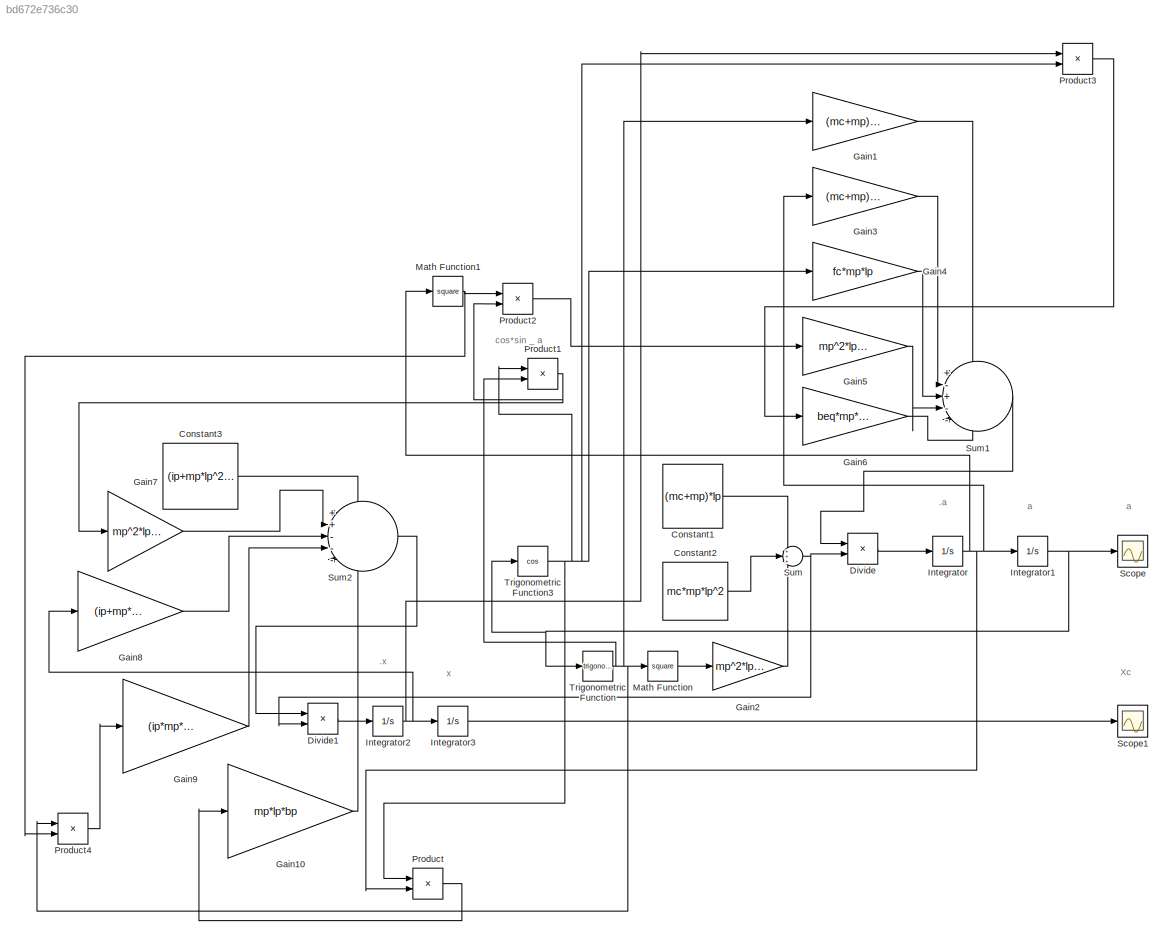
MODEL slx_bd672e736c30
KIND model
CONFIG AbsTol = auto
CONFIG EnableMultiTasking = off
CONFIG FixedStep = auto
CONFIG MaxStep = auto
CONFIG MinStep = auto
CONFIG RelTol = 1e-3
CONFIG SampleTimeConstraint = Unconstrained
CONFIG SolverName = VariableStepAuto
CONFIG StartTime = 0.0
CONFIG StopTime = 10
BLOCK [Constant] Constant1
  Value = (mc+mp)*lp
BLOCK [Constant] Constant2
  Value = mc*mp*lp^2
BLOCK [Constant] Constant3
  Value = (ip+mp*lp^2)*fc
BLOCK [Product] Divide
  Inputs = */
BLOCK [Product] Divide1
  Inputs = */
BLOCK [Gain] Gain1
  Gain = (mc+mp)*mp*g*lp
BLOCK [Gain] Gain10
  Gain = mp*lp*bp
BLOCK [Gain] Gain2
  Gain = mp^2*lp^2
BLOCK [Gain] Gain3
  Gain = (mc+mp)*bp
BLOCK [Gain] Gain4
  Gain = fc*mp*lp
BLOCK [Gain] Gain5
  Gain = mp^2*lp^2
BLOCK [Gain] Gain6
  Gain = beq*mp*lp
BLOCK [Gain] Gain7
  Gain = mp^2*lp^2*g
BLOCK [Gain] Gain8
  Gain = (ip+mp*lp^2)*beq
BLOCK [Gain] Gain9
  Gain = (ip*mp*lp-mp^2*lp^3)
BLOCK [Integrator] Integrator
BLOCK [Integrator] Integrator1
  InitialCondition = 1
BLOCK [Integrator] Integrator2
BLOCK [Integrator] Integrator3
BLOCK [Math] Math Function
  Operator = square
BLOCK [Math] Math Function1
  Operator = square
BLOCK [Product] Product
BLOCK [Product] Product1
BLOCK [Product] Product2
BLOCK [Product] Product3
BLOCK [Product] Product4
BLOCK [Scope] Scope
  ActiveDisplayYMaximum = 5.7897875407586348
  ActiveDisplayYMinimum = 0.46780138436015184
  Floating = off
  GraphicalSettings = {"Style":{"BackgroundColor":[0.12941176470588237,0.12941176470588237,0.12941176470588237],"AxesColor":[0.07058823529411765,0.07058823529411765,0.07058823529411765],"LabelsColor":[0.8509803921568627,0.8509803921568627,0.8509803921568627],"PreserveColors":false,"Visible":[true],"LineStyle":["-"],"LineWidth":[1.5],"BarWidth":[0.9],"LineColor":["auto"],"LineFaceAlpha":[1],"LineEdgeAlpha":[1],"Marker":...<+1904ch>
  MultipleDisplayCache = [{"MaxYLimMag":5.7897875407586348,"MaxYLimReal":5.7897875407586348,"MinYLimMag":0.46780138436015184,"MinYLimReal":0.46780138436015184,"PlotAsMagnitudePhase":false,"ShowGrid":true,"ShowLegend":false,"Title":"%<SignalLabel>","YLabel":""}]
  NumInputPorts = 1
  ScopeFrameLocation = window
  WasSavedAsWebScope = on
  WindowPosition = [387.000000,552.000000,560.000000,420.000000,]
BLOCK [Scope] Scope1
  ActiveDisplayYMaximum = 0.094984177857200425
  ActiveDisplayYMinimum = -0.13915027667620616
  DataLoggingVariableName = ScopeData1
  Floating = off
  GraphicalSettings = {"AxesScalingProperties":{"AlignXAxis":"Center","AlignYAxis":"Center","AutoScaleXAxisLimits":false,"AxesScaling":"Manual","AxesScalingNumUpdates":10,"ExpandOnly":true,"ScaleAxesLimitsAtStop":false,"XAxisDataRange":100,"YAxisDataRange":80},"DisplayProperties":{"ColorOrder":["auto","auto","auto","auto","auto","auto","auto","auto","auto","auto","auto","auto","auto","auto","auto","auto","auto","auto",...<+2024ch>
  MultipleDisplayCache = [{"MaxYLimMag":0.065892677756673734,"MaxYLimReal":0.094984177857200425,"MinYLimMag":0,"MinYLimReal":-0.13915027667620616,"PlotAsMagnitudePhase":false,"ShowGrid":true,"ShowLegend":false,"Title":"%<SignalLabel>","YLabel":""}]
  NumInputPorts = 1
  ScopeFrameLocation = window
  WasSavedAsWebScope = on
  WindowPosition = [601.000000,48.000000,560.000000,420.000000,]
BLOCK [Sum] Sum
  Inputs = +++
BLOCK [Sum] Sum1
  Inputs = +-+--
BLOCK [Sum] Sum2
  Inputs = ++---
BLOCK [Trigonometry] Trigonometric Function
BLOCK [Trigonometry] Trigonometric Function3
  Operator = cos
ANNOTATION (root): .a
ANNOTATION (root): .x
ANNOTATION (root): Xc
ANNOTATION (root): a
ANNOTATION (root): cos*sin _ a
ANNOTATION (root): x
LINE Constant1:1 -> Sum:1
LINE Constant2:1 -> Sum:2
LINE Constant3:1 -> Sum2:1
LINE Divide1:1 -> Integrator2:1
LINE Divide:1 -> Integrator:1
LINE Gain10:1 -> Sum2:5
LINE Gain1:1 -> Sum1:1
LINE Gain2:1 -> Sum:3
LINE Gain3:1 -> Sum1:2
LINE Gain4:1 -> Sum1:3
LINE Gain5:1 -> Sum1:4
LINE Gain6:1 -> Sum1:5
LINE Gain7:1 -> Sum2:2
LINE Gain8:1 -> Sum2:3
LINE Gain9:1 -> Sum2:4
NET Integrator1:1 -> Scope:1, Trigonometric Function3:1, Trigonometric Function:1
NET Integrator2:1 -> Gain8:1, Integrator3:1, Product3:1
LINE Integrator3:1 -> Scope1:1
NET Integrator:1 -> Gain3:1, Integrator1:1, Math Function1:1, Product:2
NET Math Function1:1 -> Product2:1, Product4:2
LINE Math Function:1 -> Gain2:1
NET Product1:1 -> Gain7:1, Product2:2
LINE Product2:1 -> Gain5:1
LINE Product3:1 -> Gain6:1
LINE Product4:1 -> Gain9:1
LINE Product:1 -> Gain10:1
LINE Sum1:1 -> Divide:1
LINE Sum2:1 -> Divide1:1
NET Sum:1 -> Divide1:2, Divide:2
NET Trigonometric Function3:1 -> Gain4:1, Product1:1, Product3:2, Product:1
NET Trigonometric Function:1 -> Gain1:1, Math Function:1, Product1:2, Product4:1
note: NET lines group one-source signal fan-out (src -> all destinations, sorted); 1:1 wires keep LINE
